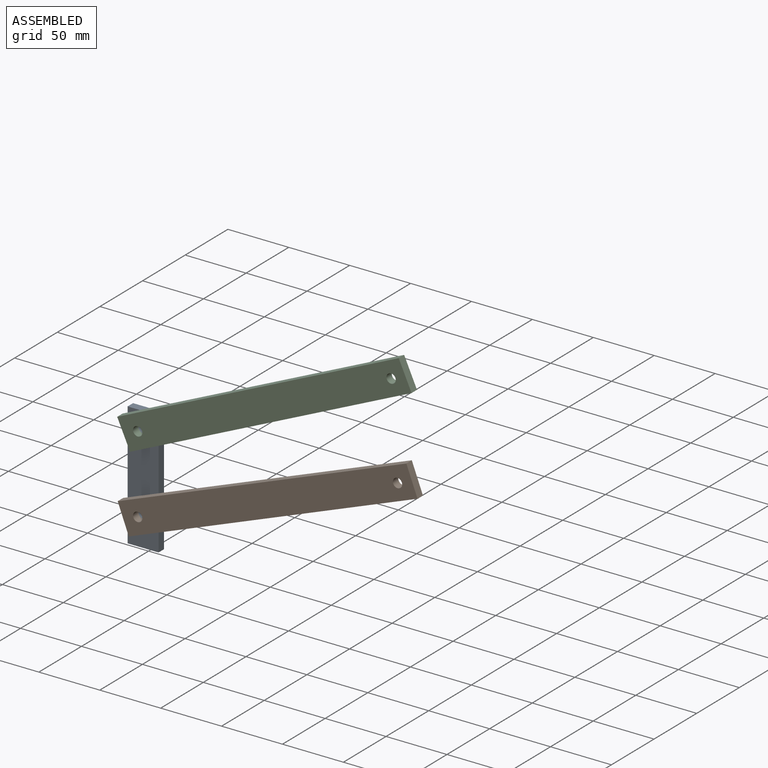
[diagram: assembled view]
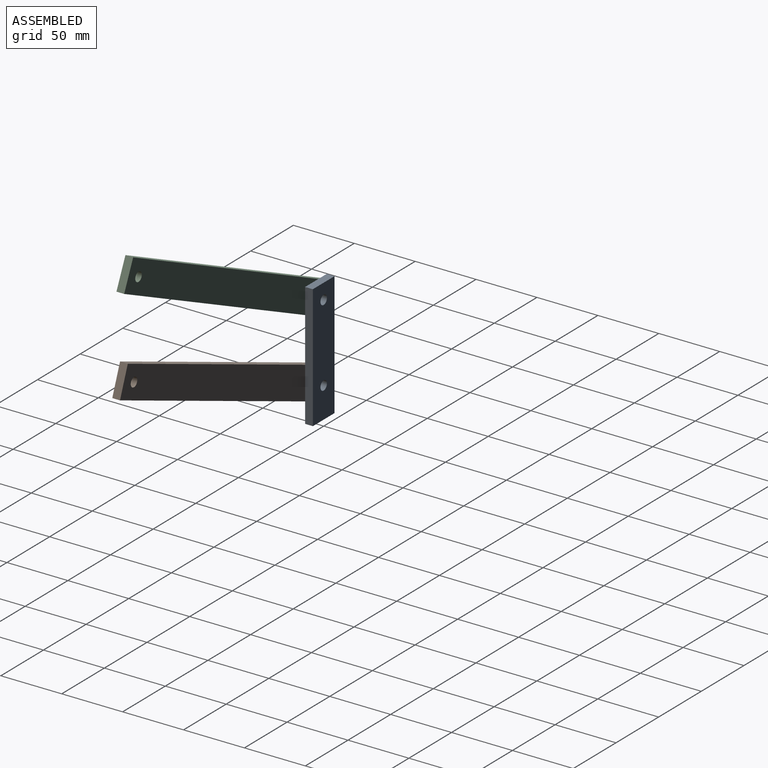
[diagram: assembled view, second angle]
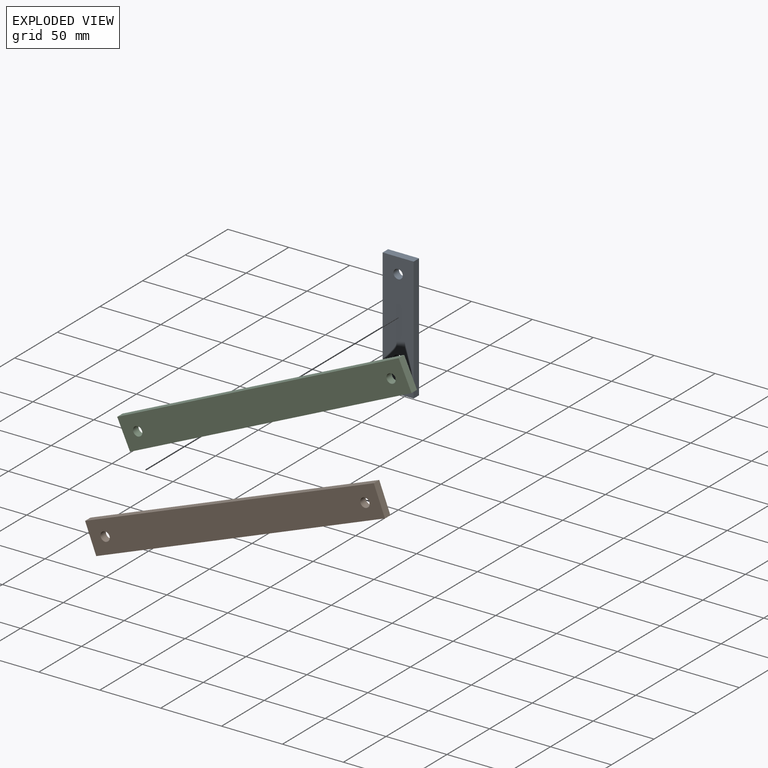
[diagram: exploded view]
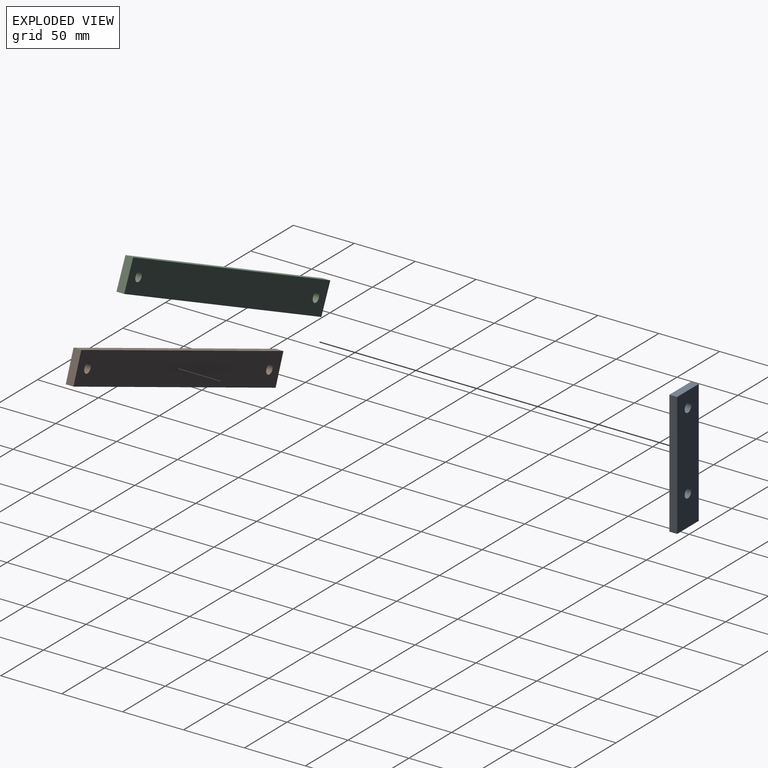
[diagram: exploded view, second angle]
ASSEMBLY  parts=3 mates=2
PART A: 8 faces, bbox 25.4x101.6x6.4 mm
  f0: plane 25.4x6.35mm, normal (0,-1,0), area 161.3mm2, adj f1,f5,f6,f7
  f1: plane 101.6x6.35mm, normal (1,0,0), area 645.2mm2, adj f0,f2,f6,f7
  f2: plane 25.4x6.35mm, normal (0,1,0), area 161.3mm2, adj f1,f5,f6,f7
  f3: cylinder r=3.81mm len=7.62mm, axis (0,0,-1), area 152mm2, adj f6,f7
  f4: cylinder r=3.81mm len=7.62mm, axis (0,0,-1), area 152mm2, adj f6,f7
  f5: plane 101.6x6.35mm, normal (-1,0,0), area 645.2mm2, adj f0,f2,f6,f7
  f6: plane 101.6x25.4mm, normal (0,0,1), area 2489.4mm2, adj f0,f1,f2,f3,f4,f5
  f7: plane 101.6x25.4mm, normal (0,0,-1), area 2489.4mm2, adj f0,f1,f2,f3,f4,f5
PART B: 8 faces, bbox 25.4x254x6.4 mm
  f0: plane 25.4x6.35mm, normal (0,-1,0), area 161.3mm2, adj f1,f5,f6,f7
  f1: plane 254x6.35mm, normal (1,0,0), area 1612.9mm2, adj f0,f2,f6,f7
  f2: plane 25.4x6.35mm, normal (0,1,0), area 161.3mm2, adj f1,f5,f6,f7
  f3: cylinder r=3.81mm len=7.62mm, axis (0,0,-1), area 152mm2, adj f6,f7
  f4: cylinder r=3.81mm len=7.62mm, axis (0,0,-1), area 152mm2, adj f6,f7
  f5: plane 254x6.35mm, normal (-1,0,0), area 1612.9mm2, adj f0,f2,f6,f7
  f6: plane 254x25.4mm, normal (0,0,1), area 6360.4mm2, adj f0,f1,f2,f3,f4,f5
  f7: plane 254x25.4mm, normal (0,0,-1), area 6360.4mm2, adj f0,f1,f2,f3,f4,f5
PART C: same geometry as B
PLACE A rot(axis=(1,0,0),90deg) t=(0,0,76.2)mm
PLACE B rot(axis=(0.72,0.49,-0.49),108.7deg) t=(106.65,-6.35,117.31)mm
PLACE C rot(axis=(-0.41,-0.64,-0.64),135deg) t=(104,-12.7,187.11)mm
MATE revolute C.f4 <-> A.f4  axis (0,1,0) through (0,-6.35,139.7)mm
MATE revolute B.f4 <-> A.f3  axis (0,1,0) through (0,-6.35,76.2)mm
